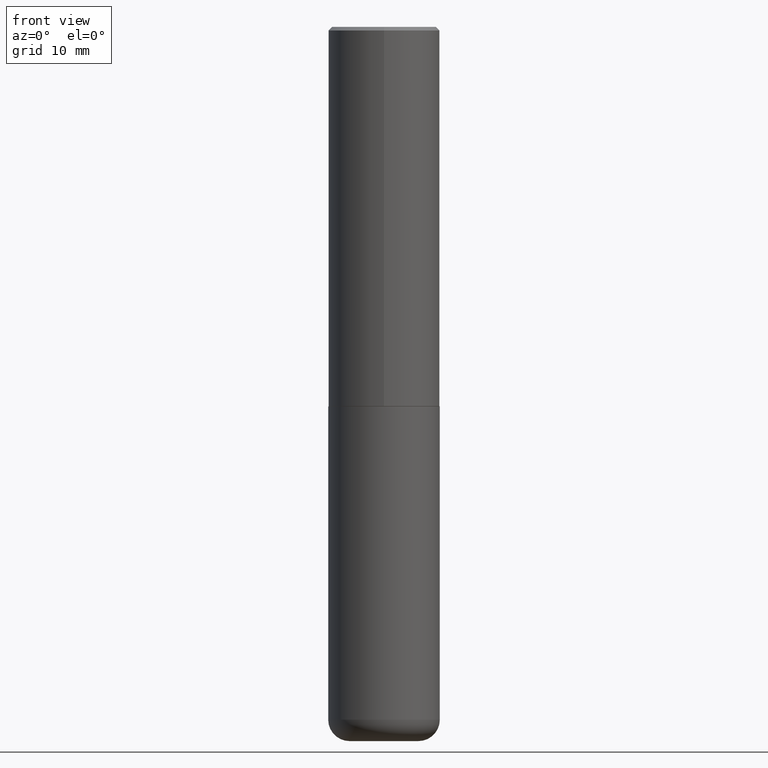
[diagram: clean part render]
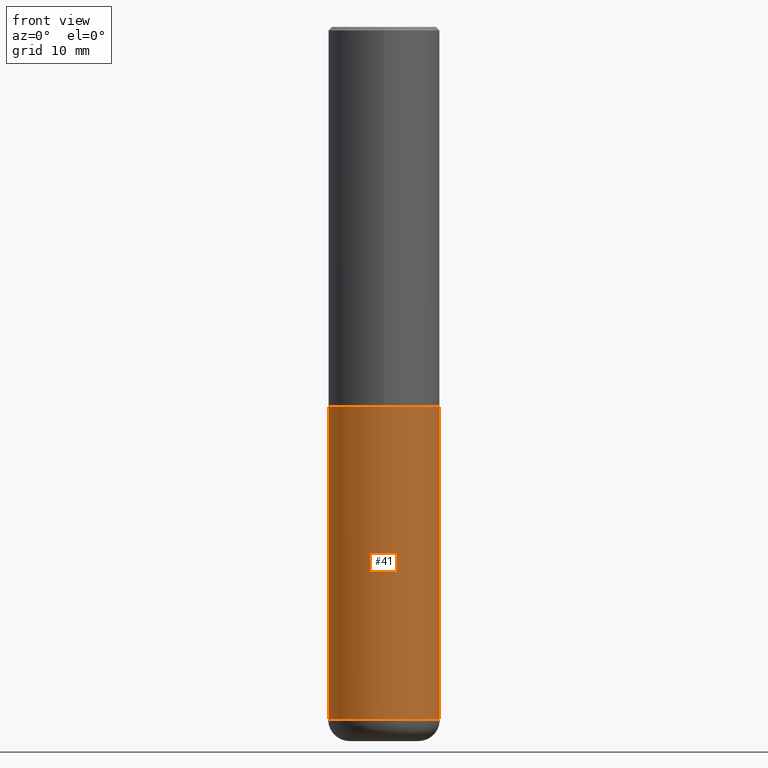
[diagram: same view with one face highlighted and labeled with its STEP entity id]
A machine part, front view. The second image highlights one B-rep face of the part: STEP entity #41.
In plain terms, the highlighted cylindrical surface (partial cylindrical patch) has radius 7.9375 mm, axis along (-0, 0, 1).
Its self-contained STEP definition (entity closure, byte-faithful):
#4 = CARTESIAN_POINT ( 'NONE',  ( -0.3125000000000000555, -1.132650154546109262E-14, -3.880000000000000338 ) ) ;
#14 = VECTOR ( 'NONE', #68, 39.37007874015748143 ) ;
#26 = EDGE_CURVE ( 'NONE', #258, #56, #97, .T. ) ;
#34 = CARTESIAN_POINT ( 'NONE',  ( 0.000000000000000000, 0.000000000000000000, 0.000000000000000000 ) ) ;
#41 = ADVANCED_FACE ( 'NONE', ( #356 ), #123, .T. ) ;
#56 = VERTEX_POINT ( 'NONE', #413 ) ;
#68 = DIRECTION ( 'NONE',  ( -2.445468806185136877E-29, 3.491481338843145188E-15, 1.000000000000000000 ) ) ;
#87 = ORIENTED_EDGE ( 'NONE', *, *, #299, .T. ) ;
#97 = CIRCLE ( 'NONE', #109, 0.3125000000000000000 ) ;
#99 = EDGE_CURVE ( 'NONE', #353, #286, #203, .T. ) ;
#102 = DIRECTION ( 'NONE',  ( -2.445468806185136877E-29, 3.491481338843145188E-15, 1.000000000000000000 ) ) ;
#109 = AXIS2_PLACEMENT_3D ( 'NONE', #160, #129, #232 ) ;
#123 = CYLINDRICAL_SURFACE ( 'NONE', #337, 0.3125000000000000000 ) ;
#125 = CARTESIAN_POINT ( 'NONE',  ( 5.196621213143414147E-29, -7.419397845041682046E-15, -2.124999999999999556 ) ) ;
#129 = DIRECTION ( 'NONE',  ( -2.445468806185136597E-29, 3.491481338843145583E-15, 1.000000000000000000 ) ) ;
#138 = CARTESIAN_POINT ( 'NONE',  ( 0.3125000000000000000, -2.182175836776958347E-15, 1.523805242436230075E-29 ) ) ;
#141 = EDGE_CURVE ( 'NONE', #258, #353, #235, .T. ) ;
#160 = CARTESIAN_POINT ( 'NONE',  ( 9.488418967998330085E-29, -1.354694759471140570E-14, -3.880000000000000338 ) ) ;
#199 = ORIENTED_EDGE ( 'NONE', *, *, #141, .F. ) ;
#203 = CIRCLE ( 'NONE', #391, 0.3125000000000000000 ) ;
#232 = DIRECTION ( 'NONE',  ( 1.000000000000000000, -6.982962677686269077E-15, 0.000000000000000000 ) ) ;
#235 = LINE ( 'NONE', #328, #14 ) ;
#258 = VERTEX_POINT ( 'NONE', #4 ) ;
#264 = DIRECTION ( 'NONE',  ( -2.445468806185136597E-29, 3.491481338843145583E-15, 1.000000000000000000 ) ) ;
#271 = CARTESIAN_POINT ( 'NONE',  ( 0.3125000000000000000, -9.601573681818640393E-15, -2.124999999999999556 ) ) ;
#285 = CARTESIAN_POINT ( 'NONE',  ( -0.3125000000000000000, -8.262726670626231579E-15, -2.124999999999999556 ) ) ;
#286 = VERTEX_POINT ( 'NONE', #271 ) ;
#290 = VECTOR ( 'NONE', #102, 39.37007874015748143 ) ;
#295 = DIRECTION ( 'NONE',  ( 1.000000000000000000, -6.982962677686265133E-15, 0.000000000000000000 ) ) ;
#299 = EDGE_CURVE ( 'NONE', #56, #286, #308, .T. ) ;
#302 = DIRECTION ( 'NONE',  ( -2.445468806185136597E-29, 3.491481338843145583E-15, 1.000000000000000000 ) ) ;
#308 = LINE ( 'NONE', #138, #290 ) ;
#319 = EDGE_LOOP ( 'NONE', ( #199, #406, #87, #350 ) ) ;
#328 = CARTESIAN_POINT ( 'NONE',  ( -0.3125000000000000000, 2.220446049250313081E-15, -1.537167215704658232E-29 ) ) ;
#337 = AXIS2_PLACEMENT_3D ( 'NONE', #34, #302, #358 ) ;
#350 = ORIENTED_EDGE ( 'NONE', *, *, #99, .F. ) ;
#353 = VERTEX_POINT ( 'NONE', #285 ) ;
#356 = FACE_OUTER_BOUND ( 'NONE', #319, .T. ) ;
#358 = DIRECTION ( 'NONE',  ( 1.000000000000000000, -6.982962677686266711E-15, 4.876176775795936353E-29 ) ) ;
#391 = AXIS2_PLACEMENT_3D ( 'NONE', #125, #264, #295 ) ;
#406 = ORIENTED_EDGE ( 'NONE', *, *, #26, .T. ) ;
#413 = CARTESIAN_POINT ( 'NONE',  ( 0.3125000000000000555, -1.572912343148836404E-14, -3.880000000000000338 ) ) ;